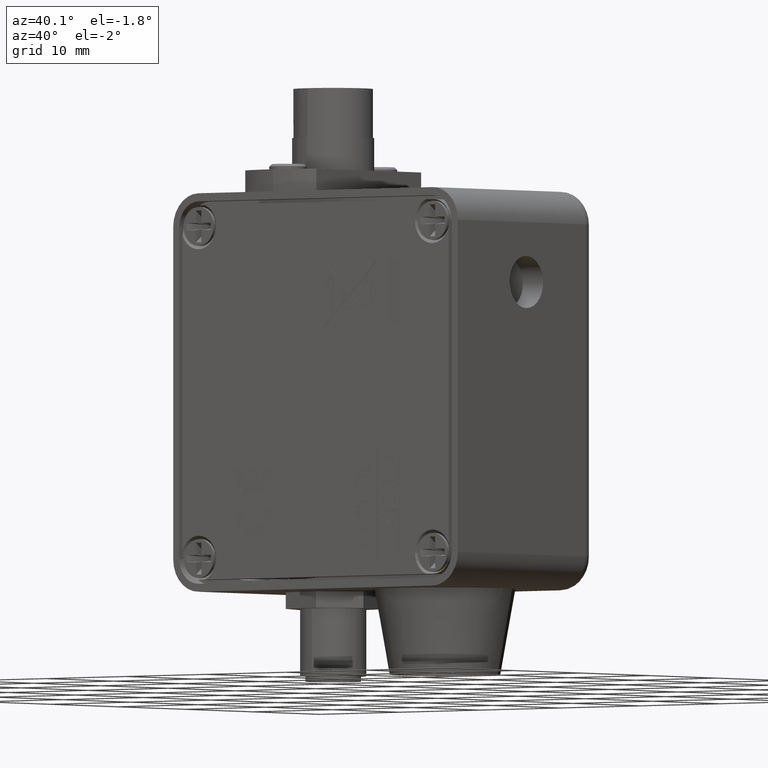
[diagram: clean part render]
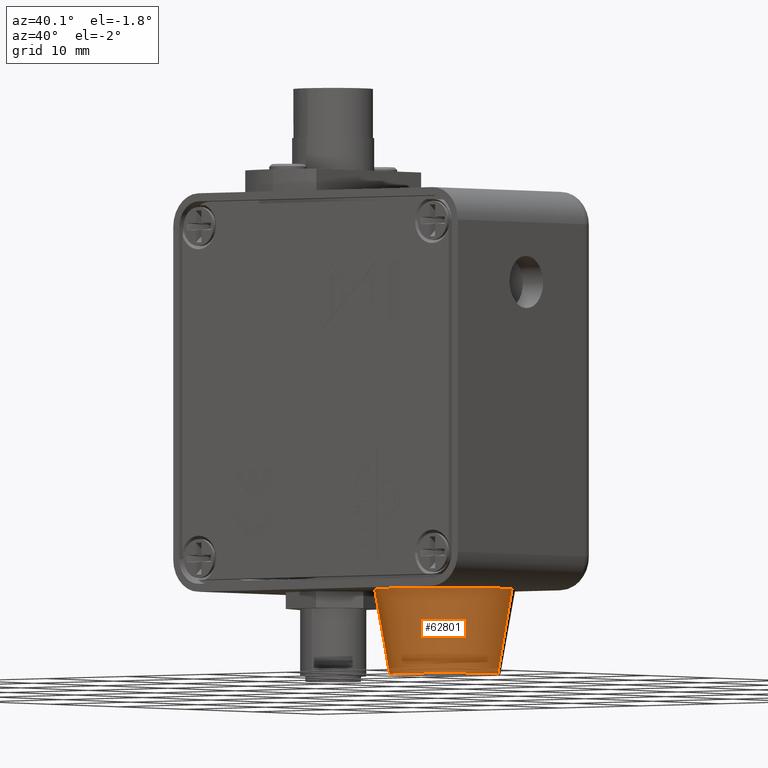
[diagram: same view with one face highlighted and labeled with its STEP entity id]
A machine part, auxiliary view. The second image highlights one B-rep face of the part: STEP entity #62801.
In plain terms, the highlighted conical surface has half-angle 10 deg.
Its self-contained STEP definition (entity closure, byte-faithful):
#16384 = LINE ( 'NONE', #19460, #16392 ) ;
#16390 = CIRCLE ( 'NONE', #17623, 0.2650000000000000100 ) ;
#16392 = VECTOR ( 'NONE', #19455, 39.37007874015748100 ) ;
#16394 = LINE ( 'NONE', #19468, #16399 ) ;
#16399 = VECTOR ( 'NONE', #19456, 39.37007874015748100 ) ;
#16403 = CIRCLE ( 'NONE', #17625, 0.2085753661732908700 ) ;
#17623 = AXIS2_PLACEMENT_3D ( 'NONE', #19485, #19487, #19488 ) ;
#17625 = AXIS2_PLACEMENT_3D ( 'NONE', #19500, #19502, #19503 ) ;
#19455 = DIRECTION ( 'NONE',  ( 0.1736481776669313300, 2.126576849575783600E-017, -0.9848077530122078000 ) ) ;
#19456 = DIRECTION ( 'NONE',  ( -0.1736481776669313300, 0.0000000000000000000, -0.9848077530122078000 ) ) ;
#19460 = CARTESIAN_POINT ( 'NONE',  ( 0.2085753661732908700, 2.554311545651078100E-017, 7.582401355855258100E-033 ) ) ;
#19468 = CARTESIAN_POINT ( 'NONE',  ( -0.2085753661732908700, 0.0000000000000000000, 7.582401355855258100E-033 ) ) ;
#19485 = CARTESIAN_POINT ( 'NONE',  ( 0.0000000000000000000, 0.0000000000000000000, -0.3200000000000000600 ) ) ;
#19487 = DIRECTION ( 'NONE',  ( -0.0000000000000000000, -0.0000000000000000000, 1.000000000000000000 ) ) ;
#19488 = DIRECTION ( 'NONE',  ( 1.000000000000000000, 0.0000000000000000000, 0.0000000000000000000 ) ) ;
#19500 = CARTESIAN_POINT ( 'NONE',  ( 0.0000000000000000000, 0.0000000000000000000, 7.582401355855258100E-033 ) ) ;
#19502 = DIRECTION ( 'NONE',  ( -0.0000000000000000000, -0.0000000000000000000, 1.000000000000000000 ) ) ;
#19503 = DIRECTION ( 'NONE',  ( 1.000000000000000000, 0.0000000000000000000, 0.0000000000000000000 ) ) ;
#22265 = AXIS2_PLACEMENT_3D ( 'NONE', #58477, #58473, #58486 ) ;
#53503 = FACE_OUTER_BOUND ( 'NONE', #94753, .T. ) ;
#53517 = CONICAL_SURFACE ( 'NONE', #22265, 0.2085753661732908700, 0.1745329251994339500 ) ;
#58473 = DIRECTION ( 'NONE',  ( 0.0000000000000000000, 0.0000000000000000000, -1.000000000000000000 ) ) ;
#58477 = CARTESIAN_POINT ( 'NONE',  ( 0.0000000000000000000, 0.0000000000000000000, 7.582401355855258100E-033 ) ) ;
#58486 = DIRECTION ( 'NONE',  ( -1.000000000000000000, 0.0000000000000000000, 0.0000000000000000000 ) ) ;
#62801 = ADVANCED_FACE ( 'NONE', ( #53503 ), #53517, .T. ) ;
#65862 = EDGE_CURVE ( 'NONE', #92939, #92951, #16384, .T. ) ;
#65869 = EDGE_CURVE ( 'NONE', #92941, #92953, #16394, .T. ) ;
#65873 = EDGE_CURVE ( 'NONE', #92953, #92951, #16390, .T. ) ;
#65879 = EDGE_CURVE ( 'NONE', #92941, #92939, #16403, .T. ) ;
#87761 = CARTESIAN_POINT ( 'NONE',  ( 0.2085753661732908700, 2.899812781695782300E-017, 7.582401355855258100E-033 ) ) ;
#87762 = CARTESIAN_POINT ( 'NONE',  ( -0.2085753661732908700, 0.0000000000000000000, 7.582401355855258100E-033 ) ) ;
#87767 = CARTESIAN_POINT ( 'NONE',  ( 0.2650000000000000100, 3.245314017740486200E-017, -0.3200000000000000600 ) ) ;
#87768 = CARTESIAN_POINT ( 'NONE',  ( -0.2650000000000000100, 0.0000000000000000000, -0.3200000000000000600 ) ) ;
#91437 = ORIENTED_EDGE ( 'NONE', *, *, #65862, .F. ) ;
#91439 = ORIENTED_EDGE ( 'NONE', *, *, #65879, .F. ) ;
#91441 = ORIENTED_EDGE ( 'NONE', *, *, #65869, .T. ) ;
#91443 = ORIENTED_EDGE ( 'NONE', *, *, #65873, .T. ) ;
#92939 = VERTEX_POINT ( 'NONE', #87761 ) ;
#92941 = VERTEX_POINT ( 'NONE', #87762 ) ;
#92951 = VERTEX_POINT ( 'NONE', #87767 ) ;
#92953 = VERTEX_POINT ( 'NONE', #87768 ) ;
#94753 = EDGE_LOOP ( 'NONE', ( #91437, #91439, #91441, #91443 ) ) ;